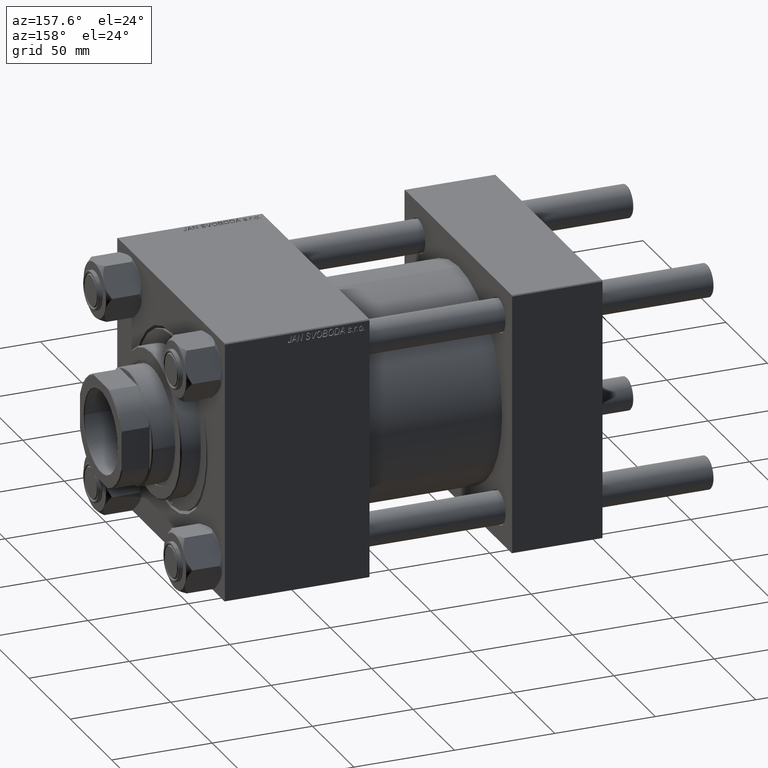
[diagram: clean part render]
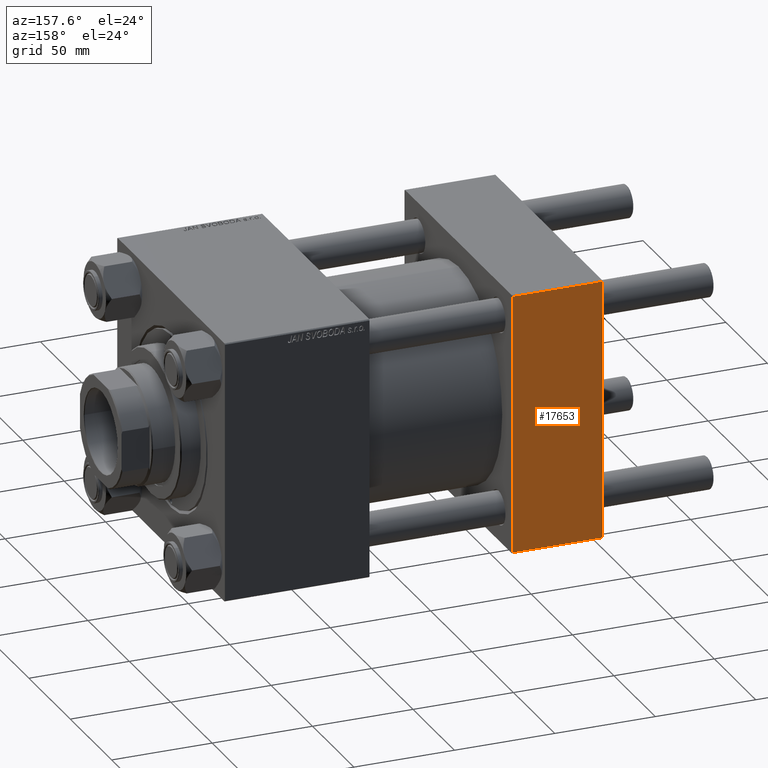
[diagram: same view with one face highlighted and labeled with its STEP entity id]
A machine part, auxiliary view. The second image highlights one B-rep face of the part: STEP entity #17653.
In plain terms, the highlighted planar face has unit normal (0, 1, 0).
Its self-contained STEP definition (entity closure, byte-faithful):
#1473 = VECTOR ( 'NONE', #15149, 1000.000000000000000 ) ;
#3279 = CARTESIAN_POINT ( 'NONE',  ( 45.00000000000000000, 65.00000000000000000, 64.49999999999998579 ) ) ;
#4216 = VERTEX_POINT ( 'NONE', #7737 ) ;
#6027 = EDGE_CURVE ( 'NONE', #4216, #26549, #24104, .T. ) ;
#7671 = ORIENTED_EDGE ( 'NONE', *, *, #8911, .F. ) ;
#7737 = CARTESIAN_POINT ( 'NONE',  ( 0.000000000000000000, 65.00000000000000000, 64.49999999999998579 ) ) ;
#8348 = PLANE ( 'NONE',  #24724 ) ;
#8355 = LINE ( 'NONE', #35976, #39536 ) ;
#8911 = EDGE_CURVE ( 'NONE', #4216, #23798, #29089, .T. ) ;
#9007 = CARTESIAN_POINT ( 'NONE',  ( 45.00000000000000000, 65.00000000000000000, 64.49999999999998579 ) ) ;
#10795 = CARTESIAN_POINT ( 'NONE',  ( 45.00000000000000000, 65.00000000000000000, 65.00000000000001421 ) ) ;
#12182 = DIRECTION ( 'NONE',  ( 0.000000000000000000, -0.000000000000000000, 1.000000000000000000 ) ) ;
#14489 = DIRECTION ( 'NONE',  ( 0.000000000000000000, 0.000000000000000000, -1.000000000000000000 ) ) ;
#15149 = DIRECTION ( 'NONE',  ( 0.000000000000000000, 0.000000000000000000, -1.000000000000000000 ) ) ;
#15920 = CARTESIAN_POINT ( 'NONE',  ( 45.00000000000000000, 65.00000000000000000, -64.49999999999995737 ) ) ;
#16934 = DIRECTION ( 'NONE',  ( 1.000000000000000000, 0.000000000000000000, 0.000000000000000000 ) ) ;
#17407 = ORIENTED_EDGE ( 'NONE', *, *, #36642, .T. ) ;
#17653 = ADVANCED_FACE ( 'NONE', ( #43616 ), #8348, .T. ) ;
#18288 = EDGE_LOOP ( 'NONE', ( #17407, #49597, #7671, #18454 ) ) ;
#18454 = ORIENTED_EDGE ( 'NONE', *, *, #6027, .T. ) ;
#18991 = LINE ( 'NONE', #10795, #1473 ) ;
#20886 = CARTESIAN_POINT ( 'NONE',  ( 0.000000000000000000, 65.00000000000000000, -64.49999999999995737 ) ) ;
#23798 = VERTEX_POINT ( 'NONE', #20886 ) ;
#24104 = LINE ( 'NONE', #9007, #34278 ) ;
#24724 = AXIS2_PLACEMENT_3D ( 'NONE', #31128, #46704, #12182 ) ;
#26549 = VERTEX_POINT ( 'NONE', #3279 ) ;
#29089 = LINE ( 'NONE', #40586, #46635 ) ;
#30916 = VERTEX_POINT ( 'NONE', #15920 ) ;
#31128 = CARTESIAN_POINT ( 'NONE',  ( 45.00000000000000000, 65.00000000000000000, 65.00000000000001421 ) ) ;
#34278 = VECTOR ( 'NONE', #16934, 1000.000000000000000 ) ;
#35976 = CARTESIAN_POINT ( 'NONE',  ( 45.00000000000000000, 65.00000000000000000, -64.49999999999995737 ) ) ;
#36642 = EDGE_CURVE ( 'NONE', #26549, #30916, #18991, .T. ) ;
#39536 = VECTOR ( 'NONE', #39545, 1000.000000000000000 ) ;
#39545 = DIRECTION ( 'NONE',  ( -1.000000000000000000, 0.000000000000000000, 0.000000000000000000 ) ) ;
#39914 = EDGE_CURVE ( 'NONE', #30916, #23798, #8355, .T. ) ;
#40586 = CARTESIAN_POINT ( 'NONE',  ( 0.000000000000000000, 65.00000000000000000, 65.00000000000001421 ) ) ;
#43616 = FACE_OUTER_BOUND ( 'NONE', #18288, .T. ) ;
#46635 = VECTOR ( 'NONE', #14489, 1000.000000000000000 ) ;
#46704 = DIRECTION ( 'NONE',  ( -0.000000000000000000, 1.000000000000000000, 0.000000000000000000 ) ) ;
#49597 = ORIENTED_EDGE ( 'NONE', *, *, #39914, .T. ) ;